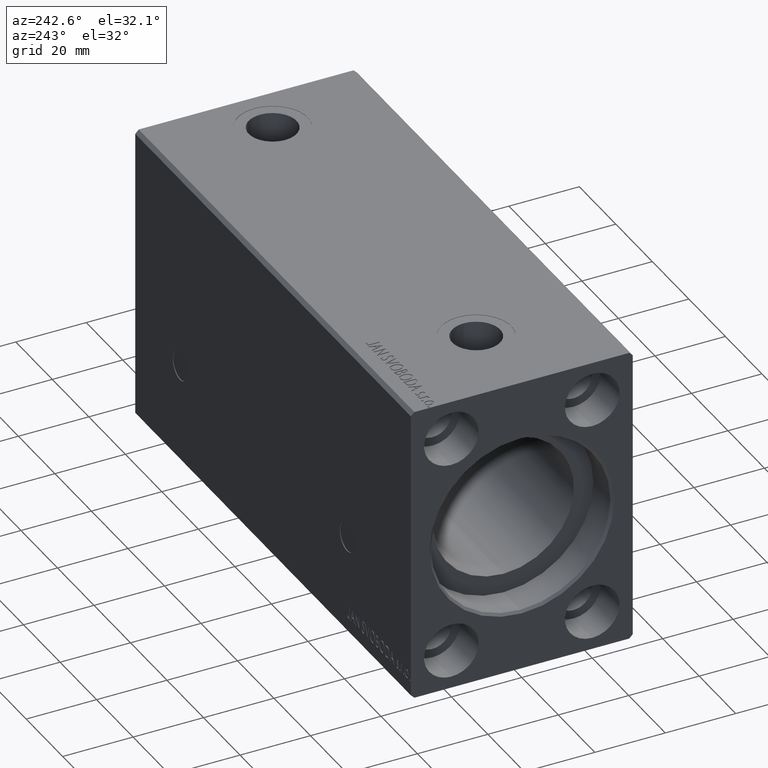
[diagram: clean part render]
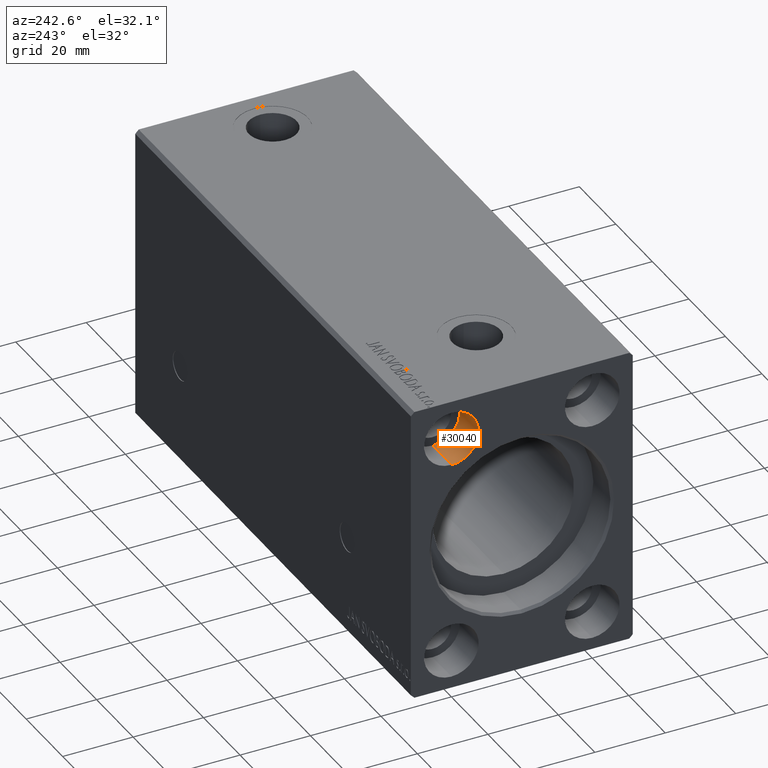
[diagram: same view with one face highlighted and labeled with its STEP entity id]
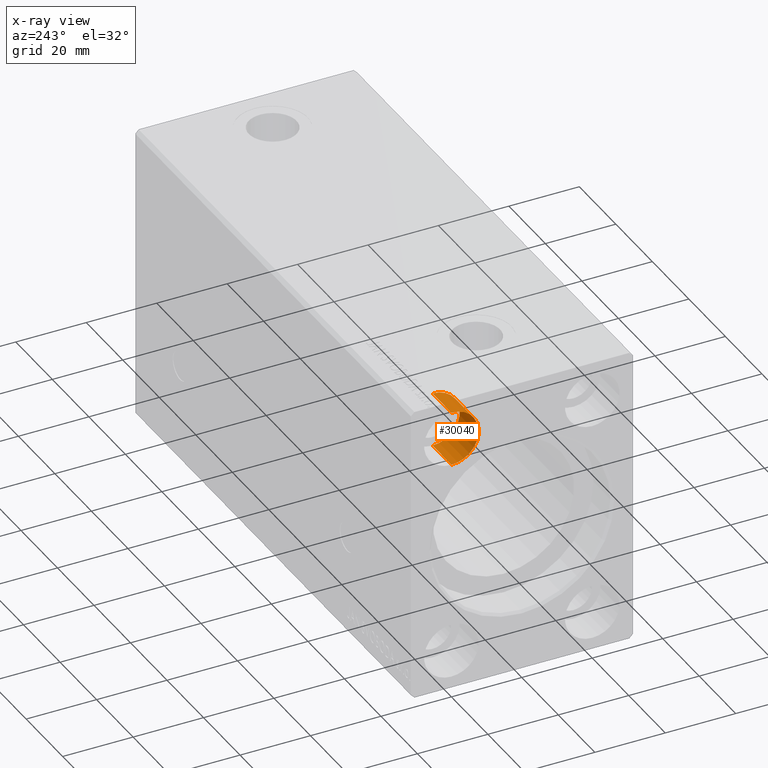
[diagram: x-ray of the same camera — body ghosted, the highlighted face saturated]
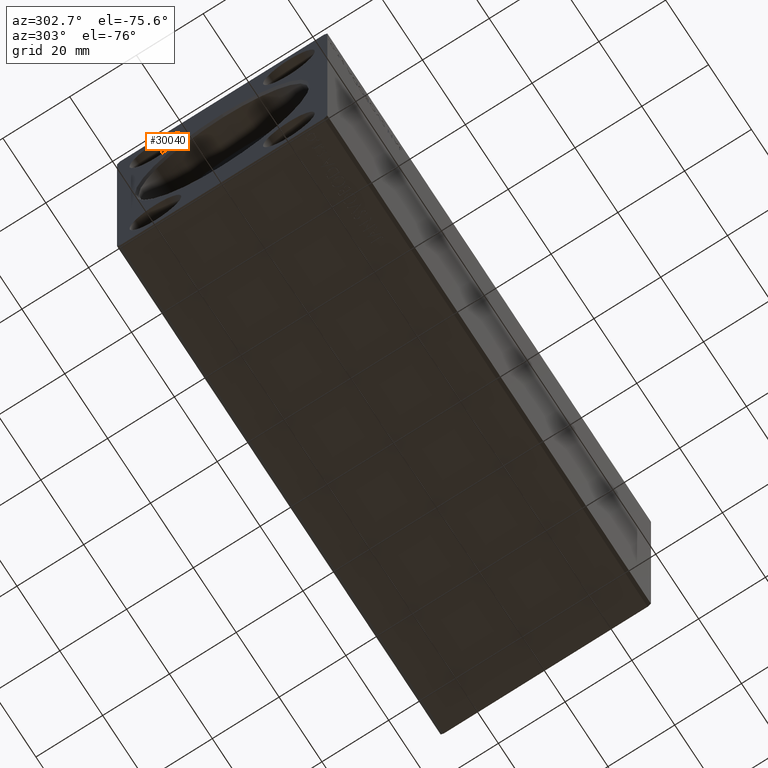
[diagram: same view with one face highlighted and labeled with its STEP entity id]
A machine part, auxiliary view. The second image highlights one B-rep face of the part: STEP entity #30040.
The next image is the same camera in x-ray: the body ghosted, the highlighted face saturated — about 0% of this face is hidden behind the body in this view.
A second angle (auxiliary view) of the same face is appended — the face is thin or edge-on in the first view.
In plain terms, the highlighted cylindrical surface (edge-blend (fillet) strip) has radius 7.75 mm, axis along (-1, -0, -0).
Its self-contained STEP definition (entity closure, byte-faithful):
#203 = VERTEX_POINT ( 'NONE', #17081 ) ;
#1900 = EDGE_CURVE ( 'NONE', #30683, #16351, #9209, .T. ) ;
#2588 = DIRECTION ( 'NONE',  ( 1.000000000000000000, -0.000000000000000000, -0.000000000000000000 ) ) ;
#8781 = CARTESIAN_POINT ( 'NONE',  ( 10.33000000000000007, 20.00000000000000355, 23.75000000000001421 ) ) ;
#9209 = LINE ( 'NONE', #8781, #13593 ) ;
#10587 = AXIS2_PLACEMENT_3D ( 'NONE', #22774, #2588, #32231 ) ;
#13090 = CIRCLE ( 'NONE', #37111, 7.750000000000000000 ) ;
#13118 = AXIS2_PLACEMENT_3D ( 'NONE', #33092, #17399, #20203 ) ;
#13326 = CYLINDRICAL_SURFACE ( 'NONE', #13118, 7.750000000000000000 ) ;
#13593 = VECTOR ( 'NONE', #25327, 1000.000000000000000 ) ;
#13748 = FACE_OUTER_BOUND ( 'NONE', #14614, .T. ) ;
#14375 = DIRECTION ( 'NONE',  ( 1.000000000000000000, -0.000000000000000000, -0.000000000000000000 ) ) ;
#14614 = EDGE_LOOP ( 'NONE', ( #16524, #39419, #35005, #33791 ) ) ;
#16351 = VERTEX_POINT ( 'NONE', #19834 ) ;
#16524 = ORIENTED_EDGE ( 'NONE', *, *, #29398, .T. ) ;
#17081 = CARTESIAN_POINT ( 'NONE',  ( 10.33000000000000007, 20.00000000000000355, 39.25000000000001421 ) ) ;
#17399 = DIRECTION ( 'NONE',  ( -1.000000000000000000, -0.000000000000000000, -0.000000000000000000 ) ) ;
#19142 = CARTESIAN_POINT ( 'NONE',  ( 10.33000000000000007, 20.00000000000000355, 39.25000000000001421 ) ) ;
#19834 = CARTESIAN_POINT ( 'NONE',  ( 0.000000000000000000, 20.00000000000000355, 23.75000000000001421 ) ) ;
#20203 = DIRECTION ( 'NONE',  ( 0.000000000000000000, 0.000000000000000000, 1.000000000000000000 ) ) ;
#22774 = CARTESIAN_POINT ( 'NONE',  ( 0.000000000000000000, 20.00000000000000355, 31.50000000000001421 ) ) ;
#22851 = VECTOR ( 'NONE', #42139, 1000.000000000000000 ) ;
#22930 = VERTEX_POINT ( 'NONE', #35300 ) ;
#25327 = DIRECTION ( 'NONE',  ( -1.000000000000000000, -0.000000000000000000, -0.000000000000000000 ) ) ;
#26547 = EDGE_CURVE ( 'NONE', #203, #22930, #29040, .T. ) ;
#29040 = LINE ( 'NONE', #19142, #22851 ) ;
#29398 = EDGE_CURVE ( 'NONE', #203, #30683, #13090, .T. ) ;
#29589 = CARTESIAN_POINT ( 'NONE',  ( 10.33000000000000007, 20.00000000000000355, 23.75000000000001421 ) ) ;
#30040 = ADVANCED_FACE ( 'NONE', ( #13748 ), #13326, .F. ) ;
#30683 = VERTEX_POINT ( 'NONE', #29589 ) ;
#30915 = DIRECTION ( 'NONE',  ( 0.000000000000000000, 0.000000000000000000, -1.000000000000000000 ) ) ;
#32231 = DIRECTION ( 'NONE',  ( 0.000000000000000000, 0.000000000000000000, -1.000000000000000000 ) ) ;
#33092 = CARTESIAN_POINT ( 'NONE',  ( 10.33000000000000007, 20.00000000000000355, 31.50000000000001421 ) ) ;
#33791 = ORIENTED_EDGE ( 'NONE', *, *, #26547, .F. ) ;
#35005 = ORIENTED_EDGE ( 'NONE', *, *, #38401, .F. ) ;
#35300 = CARTESIAN_POINT ( 'NONE',  ( 0.000000000000000000, 20.00000000000000355, 39.25000000000001421 ) ) ;
#37111 = AXIS2_PLACEMENT_3D ( 'NONE', #39529, #14375, #30915 ) ;
#38401 = EDGE_CURVE ( 'NONE', #22930, #16351, #39399, .T. ) ;
#39399 = CIRCLE ( 'NONE', #10587, 7.750000000000000000 ) ;
#39419 = ORIENTED_EDGE ( 'NONE', *, *, #1900, .T. ) ;
#39529 = CARTESIAN_POINT ( 'NONE',  ( 10.33000000000000007, 20.00000000000000355, 31.50000000000001421 ) ) ;
#42139 = DIRECTION ( 'NONE',  ( -1.000000000000000000, -0.000000000000000000, -0.000000000000000000 ) ) ;